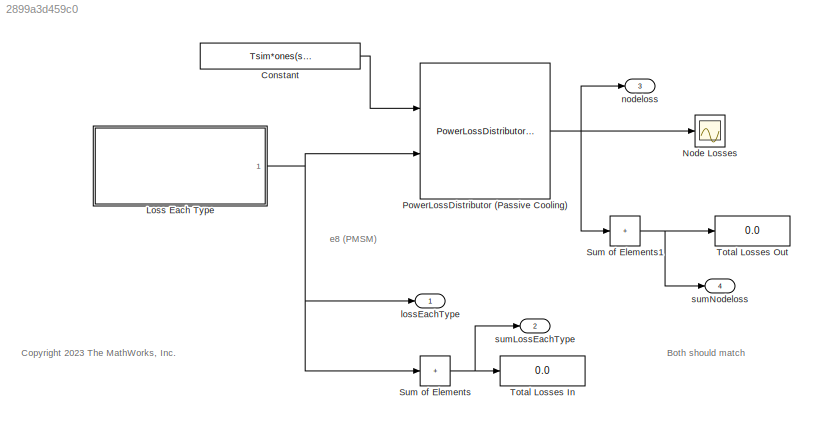
MODEL slx_2899a3d459c0
KIND model
CONFIG AbsTol = auto
CONFIG EnableMultiTasking = off
CONFIG FixedStep = auto
CONFIG MaxStep = auto
CONFIG MinStep = auto
CONFIG RelTol = 1e-3
CONFIG SampleTimeConstraint = Unconstrained
CONFIG SolverName = VariableStepAuto
CONFIG StartTime = 0.0
CONFIG StopTime = 10.0
WORKSPACE source: mxarray member
WORKSPACE AdjacencyMat = [0 0 0 0 0 0 0 0 0 0 0 0 ... (15129 elements, 123x123)]
WORKSPACE CapMat = [1e+20 2196.70091586 387.653102799 193.8265514 1962.34710525 387.653102799 193.8265514 1962.34710525 1266.59353814 268.053957132 416.539515956 175.715078 ... (123 elements, 123x1)]
WORKSPACE CoolantArrayIdxs = [20 21 22 23 24 25 26 27 35 36 37 84 ... (19 elements, 19x1)]
WORKSPACE Friction_Loss_Mat = [0 0 0 0 0 0 0 0 0 0 0 0 ... (2340 elements, 39x60)]
WORKSPACE InletCoolIdxs = [37 38]
WORKSPACE Iron_Loss_Rotor_Back_Iron_Mat = [0.0117485795538 0.0197051847397 0.0244700561647 0.0255532537599 0.0239976928195 0.0207690118754 0.0168550814705 0.0133554634632 0.01151831468 0.0120080610473 0.0141635691716 0.0169722368466 ... (2340 elements, 39x60)]
WORKSPACE Iron_Loss_Rotor_Pole_Mat = [1.4581490918 1.4537473697 1.43037570585 1.39187577753 1.34319900564 1.28804676124 1.2293784806 1.16971068454 1.11123984852 1.0549546703 0.999931477749 0.94446781724 ... (2340 elements, 39x60)]
WORKSPACE Iron_Loss_Rotor_Tooth_Mat = [0 0 0 0 0 0 0 0 0 0 0 0 ... (2340 elements, 39x60)]
WORKSPACE Iron_Loss_Stator_Back_Iron_Mat = [38.4149877088 37.6503107125 36.6652845221 35.5768425978 34.4225640875 33.2346156756 32.0443324124 30.8866766706 29.801209009 28.7963723188 27.8072961338 26.7363012626 ... (2340 elements, 39x60)]
WORKSPACE Iron_Loss_Stator_Tooth_Mat = [42.0487318978 41.0399202886 40.1567907901 39.4070106899 38.6872815615 37.9480215396 37.175663609 36.3826322946 35.5969122241 34.8195499408 33.9921719085 33.0420249153 ... (2340 elements, 39x60)]
WORKSPACE LossDistrForEachType = [0 0 0 0 0 0 0 0 0 0 0 0 ... (1968 elements, 16x123)]
WORKSPACE Magnet_Loss_Mat = [0.0992355707119 0.0926361497593 0.0866339598393 0.0816717050449 0.0772717421391 0.0730472022398 0.0686189288913 0.0635413555728 0.0572450430654 0.0495346500988 0.0410747136719 0.0327097040848 ... (2340 elements, 39x60)]
WORKSPACE OutletCoolIdxs = [20 107]
WORKSPACE Rotor_Cage_Loss_Mat = [0 0 0 0 0 0 0 0 0 0 0 0 ... (2340 elements, 39x60)]
WORKSPACE ShaftTorqueVec = [-285.363175319 -270.469371582 -255.575567846 -240.681764109 -225.787960373 -210.894156636 -196.0003529 -181.106549163 -166.212745427 -151.31894169 -136.425137954 -121.531334217 ... (39 elements, 1x39)]
WORKSPACE SpeedVec = [500 661.016949153 822.033898305 983.050847458 1144.06779661 1305.08474576 1466.10169492 1627.11864407 1788.13559322 1949.15254237 2110.16949153 2271.18644068 ... (60 elements, 1x60)]
WORKSPACE StateSpaceND: object (value not decoded)
WORKSPACE StatorCopperTempCoefResistivity = 0.00393
WORKSPACE Stator_Copper_Loss_Mat = [4036.39837515 3610.67609702 3178.68722837 2791.06956208 2441.07338047 2123.72912642 1835.28722535 1572.85477291 1334.16141597 1117.77314243 921.650266023 744.483696972 ... (2340 elements, 39x60)]
WORKSPACE Stray_Load_Loss_Mat = [0 0 0 0 0 0 0 0 0 0 0 0 ... (2340 elements, 39x60)]
WORKSPACE Stray_Loss_Stator_Iron_Proportion = 0.95
WORKSPACE Tgiven = 20
WORKSPACE TnodesInit = [25 25 25 25 25 25 25 25 25 25 25 25 ... (123 elements, 123x1)]
WORKSPACE Tsim = 20
WORKSPACE Windage_Loss_Mat = [0 0 0 0 0 0 0 0 0 0 0 0 ... (2340 elements, 39x60)]
WORKSPACE armatureCopperLossVal = 35
WORKSPACE backIronLossVal = 15
WORKSPACE magnetLossVal = 12
WORKSPACE speedVal = 2000
WORKSPACE toothIronLossVal = 25
WORKSPACE torqueVal = 20
BLOCK [Constant] Constant
  Value = Tsim*ones(size(TnodesInit))
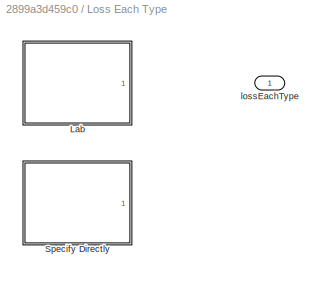
BLOCK [SubSystem] Loss Each Type
  LabelModeActiveChoice = Specify Directly
  Ports = [0, 1]
  RequestExecContextInheritance = off
  Variant = on
  VariantControl = Choice
  VariantControlMode = label
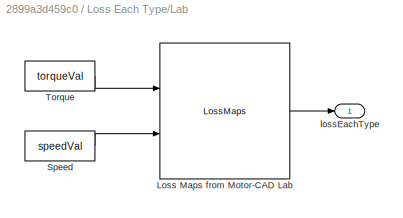
BLOCK [SubSystem] Loss Each Type/Lab
  Ports = [0, 1]
  RequestExecContextInheritance = off
  VariantControl = Lab
BLOCK [Reference] Loss Each Type/Lab/Loss Maps from Motor-CAD Lab  REF=mcadROM_lib/LossMaps
  Ports = [2, 1]
  SourceBlock = mcadROM_lib/LossMaps
BLOCK [Constant] Loss Each Type/Lab/Speed
  Value = speedVal
BLOCK [Constant] Loss Each Type/Lab/Torque
  Value = torqueVal
BLOCK [Outport] Loss Each Type/Lab/lossEachType
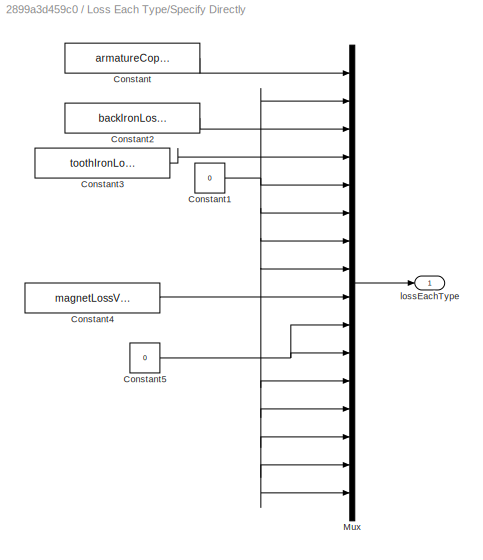
BLOCK [SubSystem] Loss Each Type/Specify Directly
  Ports = [0, 1]
  RequestExecContextInheritance = off
  VariantControl = Specify Directly
BLOCK [Constant] Loss Each Type/Specify Directly/Constant
  Value = armatureCopperLossVal
BLOCK [Constant] Loss Each Type/Specify Directly/Constant1
  Value = 0
BLOCK [Constant] Loss Each Type/Specify Directly/Constant2
  Value = backIronLossVal
BLOCK [Constant] Loss Each Type/Specify Directly/Constant3
  Value = toothIronLossVal
BLOCK [Constant] Loss Each Type/Specify Directly/Constant4
  Value = magnetLossVal
BLOCK [Constant] Loss Each Type/Specify Directly/Constant5
  Value = 0
BLOCK [Mux] Loss Each Type/Specify Directly/Mux
  DisplayOption = bar
  Inputs = 16
  Ports = [16, 1]
BLOCK [Outport] Loss Each Type/Specify Directly/lossEachType
BLOCK [Outport] Loss Each Type/lossEachType
BLOCK [Scope] Node Losses
  Floating = off
  NumInputPorts = 1
  Ports = [1]
  ScopeSpecificationString = Simulink.scopes.TimeScopeBlockCfg('CurrentConfiguration', extmgr.ConfigurationSet(extmgr.Configuration('Core','General UI',true),extmgr.Configuration('Core','Source UI',true),extmgr.Configuration('Sources','WiredSimulink',true),extmgr.Configuration('Visuals','Time Domain',true,'SerializedDisplays',{struct('MinYLimReal','-0.625','MaxYLimReal','5.625','YLabelReal','','MinYLimMag','0.00000','MaxYLimM...<+6815ch>
BLOCK [Reference] PowerLossDistributor (Passive Cooling)  REF=mcadROM_lib/PowerLossDistributor (Passive Cooling)
  Ports = [2, 1]
  SourceBlock = mcadROM_lib/PowerLossDistributor (Passive Cooling)
BLOCK [Sum] Sum of Elements
  IconShape = rectangular
  Inputs = +
  Ports = [1, 1]
BLOCK [Sum] Sum of Elements1
  IconShape = rectangular
  Inputs = +
  Ports = [1, 1]
BLOCK [Display] Total Losses In
  Decimation = 1
  Ports = [1]
BLOCK [Display] Total Losses Out
  Decimation = 1
  Ports = [1]
BLOCK [Outport] lossEachType
BLOCK [Outport] nodeloss
  Port = 3
  PortDimensions = [123,1]
BLOCK [Outport] sumLossEachType
  Port = 2
BLOCK [Outport] sumNodeloss
  Port = 4
ANNOTATION (root): Both should match
ANNOTATION (root): <copyright redacted>
ANNOTATION (root): e8 (PMSM)
LINE Constant:1 -> PowerLossDistributor (Passive Cooling):1
LINE Loss Each Type/Lab/Loss Maps from Motor-CAD Lab:1 -> Loss Each Type/Lab/lossEachType:1
LINE Loss Each Type/Lab/Speed:1 -> Loss Each Type/Lab/Loss Maps from Motor-CAD Lab:2
LINE Loss Each Type/Lab/Torque:1 -> Loss Each Type/Lab/Loss Maps from Motor-CAD Lab:1
NET Loss Each Type/Specify Directly/Constant1:1 -> Loss Each Type/Specify Directly/Mux:12, Loss Each Type/Specify Directly/Mux:13, Loss Each Type/Specify Directly/Mux:14, Loss Each Type/Specify Directly/Mux:15, Loss Each Type/Specify Directly/Mux:16, Loss Each Type/Specify Directly/Mux:2, Loss Each Type/Specify Directly/Mux:5, Loss Each Type/Specify Directly/Mux:6, Loss Each Type/Specify Directly/Mux:7, Loss Each Type/Specify Directly/Mux:8
LINE Loss Each Type/Specify Directly/Constant2:1 -> Loss Each Type/Specify Directly/Mux:3
LINE Loss Each Type/Specify Directly/Constant3:1 -> Loss Each Type/Specify Directly/Mux:4
LINE Loss Each Type/Specify Directly/Constant4:1 -> Loss Each Type/Specify Directly/Mux:9
NET Loss Each Type/Specify Directly/Constant5:1 -> Loss Each Type/Specify Directly/Mux:10, Loss Each Type/Specify Directly/Mux:11
LINE Loss Each Type/Specify Directly/Constant:1 -> Loss Each Type/Specify Directly/Mux:1
LINE Loss Each Type/Specify Directly/Mux:1 -> Loss Each Type/Specify Directly/lossEachType:1
NET Loss Each Type:1 -> PowerLossDistributor (Passive Cooling):2, Sum of Elements:1, lossEachType:1
NET PowerLossDistributor (Passive Cooling):1 -> Node Losses:1, Sum of Elements1:1, nodeloss:1
NET Sum of Elements1:1 -> Total Losses Out:1, sumNodeloss:1
NET Sum of Elements:1 -> Total Losses In:1, sumLossEachType:1
note: NET lines group one-source signal fan-out (src -> all destinations, sorted); 1:1 wires keep LINE
